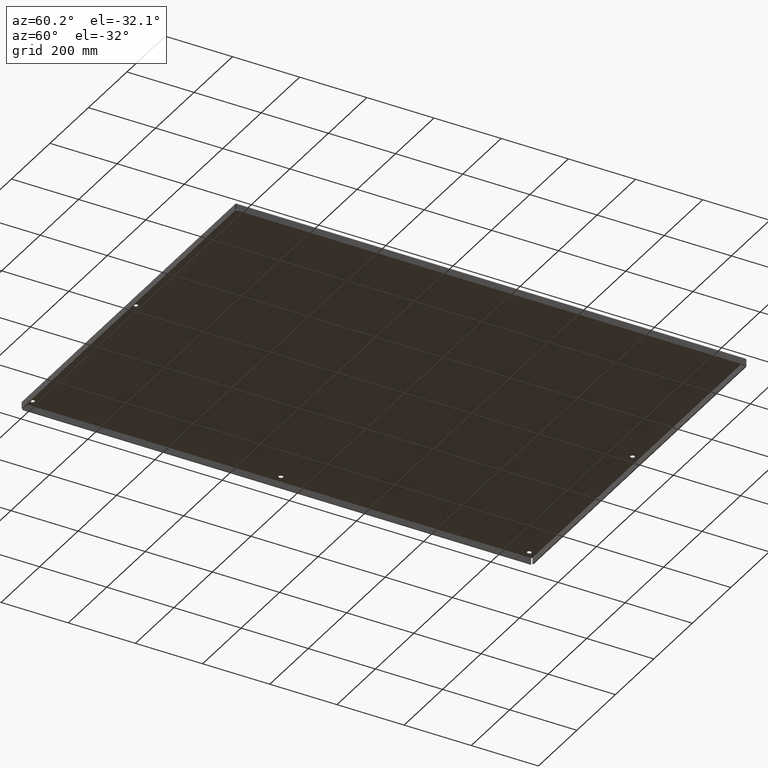
[diagram: clean part render]
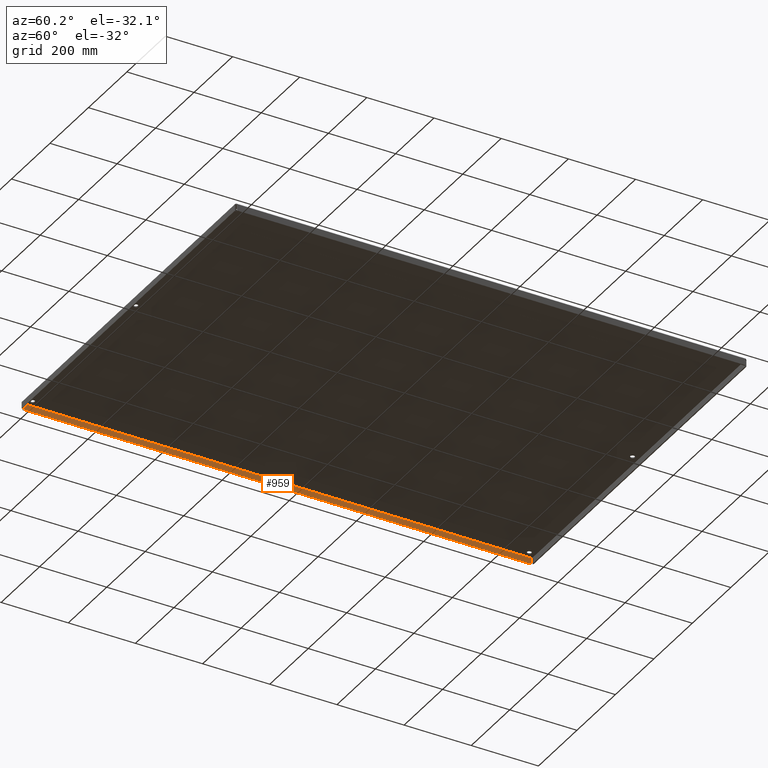
[diagram: same view with one face highlighted and labeled with its STEP entity id]
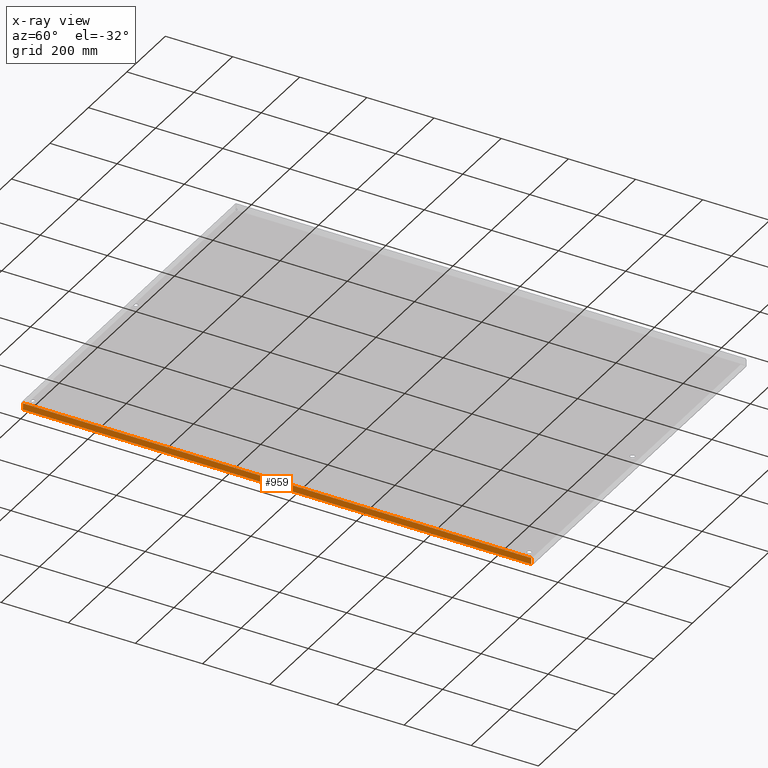
[diagram: x-ray of the same camera — body ghosted, the highlighted face saturated]
A machine part, auxiliary view. The second image highlights one B-rep face of the part: STEP entity #959.
The next image is the same camera in x-ray: the body ghosted, the highlighted face saturated — about 0% of this face is hidden behind the body in this view.
In plain terms, the highlighted planar face has unit normal (-1, 0, 0).
Its self-contained STEP definition (entity closure, byte-faithful):
#920=CARTESIAN_POINT('',(0.124999999999991,30.000000000000007,-0.338477516194021));
#921=DIRECTION('',(-1.0,0.0,0.0));
#922=DIRECTION('',(0.0,0.0,1.0));
#923=AXIS2_PLACEMENT_3D('',#920,#921,#922);
#924=PLANE('',#923);
#925=CARTESIAN_POINT('',(0.124999999999982,59.786611652351688,-0.015600000000003));
#926=VERTEX_POINT('',#925);
#927=CARTESIAN_POINT('',(0.125,0.213388347648319,-0.015600000000001));
#928=VERTEX_POINT('',#927);
#929=CARTESIAN_POINT('',(0.124999999999982,59.786611652351681,-0.0156));
#930=DIRECTION('',(0.0,-1.0,0.0));
#931=VECTOR('',#930,59.573223304703362);
#932=LINE('',#929,#931);
#933=EDGE_CURVE('',#926,#928,#932,.T.);
#934=ORIENTED_EDGE('',*,*,#933,.T.);
#935=CARTESIAN_POINT('',(0.125,0.213388347648326,-0.750000000000001));
#936=VERTEX_POINT('',#935);
#937=CARTESIAN_POINT('',(0.125,0.213388347648326,-0.015600000000001));
#938=DIRECTION('',(0.0,0.0,-1.0));
#939=VECTOR('',#938,0.7344);
#940=LINE('',#937,#939);
#941=EDGE_CURVE('',#928,#936,#940,.T.);
#942=ORIENTED_EDGE('',*,*,#941,.T.);
#943=CARTESIAN_POINT('',(0.124999999999982,59.786611652351688,-0.750000000000003));
#944=VERTEX_POINT('',#943);
#945=CARTESIAN_POINT('',(0.125,0.213388347648326,-0.750000000000001));
#946=DIRECTION('',(0.0,1.0,0.0));
#947=VECTOR('',#946,59.573223304703369);
#948=LINE('',#945,#947);
#949=EDGE_CURVE('',#936,#944,#948,.T.);
#950=ORIENTED_EDGE('',*,*,#949,.T.);
#951=CARTESIAN_POINT('',(0.124999999999982,59.786611652351688,-0.015600000000003));
#952=DIRECTION('',(0.0,0.0,-1.0));
#953=VECTOR('',#952,0.7344);
#954=LINE('',#951,#953);
#955=EDGE_CURVE('',#926,#944,#954,.T.);
#956=ORIENTED_EDGE('',*,*,#955,.F.);
#957=EDGE_LOOP('',(#934,#942,#950,#956));
#958=FACE_OUTER_BOUND('',#957,.T.);
#959=ADVANCED_FACE('',(#958),#924,.F.);